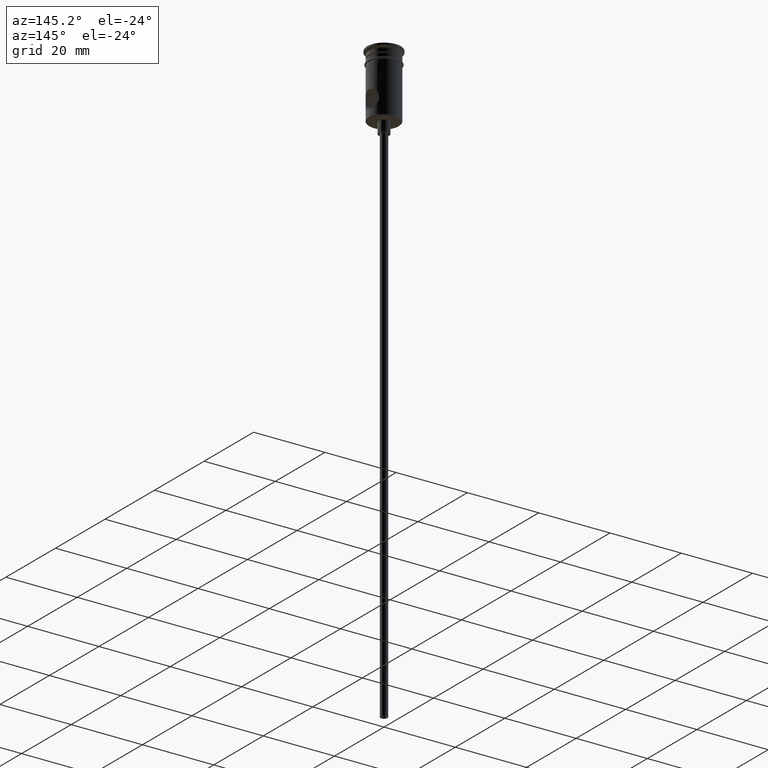
[diagram: clean part render]
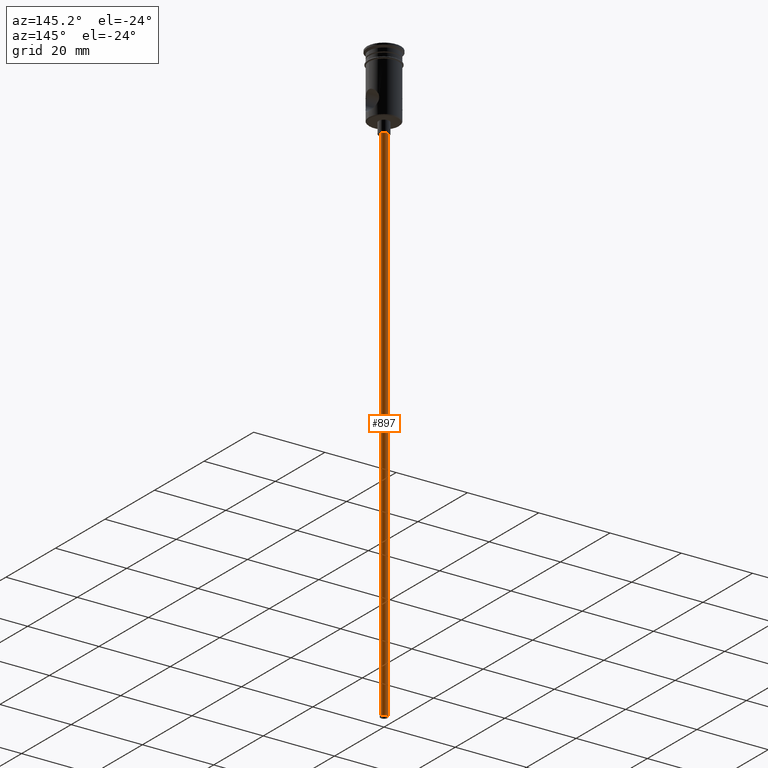
[diagram: same view with one face highlighted and labeled with its STEP entity id]
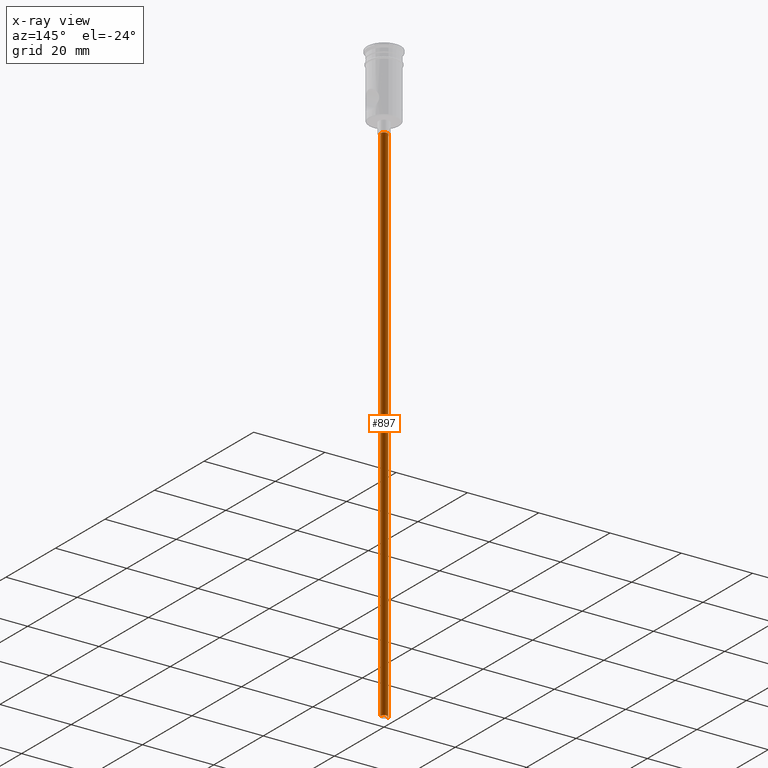
[diagram: x-ray of the same camera — body ghosted, the highlighted face saturated]
A machine part, auxiliary view. The second image highlights one B-rep face of the part: STEP entity #897.
The next image is the same camera in x-ray: the body ghosted, the highlighted face saturated — about 0% of this face is hidden behind the body in this view.
In plain terms, the highlighted cylindrical surface (edge-blend (fillet) strip) has radius 1 mm, axis along (-0, -0, 1).
Its self-contained STEP definition (entity closure, byte-faithful):
#17 = CARTESIAN_POINT ( 'NONE',  ( 0.9999999999999997780, 0.000000000000000000, -167.9999999999999716 ) ) ;
#21 = VERTEX_POINT ( 'NONE', #801 ) ;
#70 = DIRECTION ( 'NONE',  ( 1.000000000000000000, 0.000000000000000000, 0.000000000000000000 ) ) ;
#166 = ORIENTED_EDGE ( 'NONE', *, *, #759, .F. ) ;
#215 = CARTESIAN_POINT ( 'NONE',  ( -0.9999999999999997780, 1.224646799147352961E-16, -20.99999999999999645 ) ) ;
#272 = CARTESIAN_POINT ( 'NONE',  ( -0.9999999999999997780, 1.224646799147352961E-16, -167.9999999999999716 ) ) ;
#322 = EDGE_LOOP ( 'NONE', ( #166, #479, #374, #1351 ) ) ;
#374 = ORIENTED_EDGE ( 'NONE', *, *, #1289, .T. ) ;
#375 = VECTOR ( 'NONE', #668, 1000.000000000000000 ) ;
#440 = AXIS2_PLACEMENT_3D ( 'NONE', #1054, #1266, #70 ) ;
#479 = ORIENTED_EDGE ( 'NONE', *, *, #903, .T. ) ;
#572 = CIRCLE ( 'NONE', #587, 0.9999999999999997780 ) ;
#573 = VERTEX_POINT ( 'NONE', #1041 ) ;
#587 = AXIS2_PLACEMENT_3D ( 'NONE', #812, #1254, #655 ) ;
#630 = DIRECTION ( 'NONE',  ( -1.000000000000000000, 0.000000000000000000, 0.000000000000000000 ) ) ;
#652 = CIRCLE ( 'NONE', #1116, 0.9999999999999997780 ) ;
#655 = DIRECTION ( 'NONE',  ( -1.000000000000000000, 0.000000000000000000, 0.000000000000000000 ) ) ;
#660 = VECTOR ( 'NONE', #728, 1000.000000000000000 ) ;
#668 = DIRECTION ( 'NONE',  ( -0.000000000000000000, -0.000000000000000000, 1.000000000000000000 ) ) ;
#728 = DIRECTION ( 'NONE',  ( -0.000000000000000000, -0.000000000000000000, 1.000000000000000000 ) ) ;
#759 = EDGE_CURVE ( 'NONE', #21, #1179, #572, .T. ) ;
#801 = CARTESIAN_POINT ( 'NONE',  ( -0.9999999999999997780, 1.224646799147352961E-16, -167.9999999999999716 ) ) ;
#811 = FACE_OUTER_BOUND ( 'NONE', #322, .T. ) ;
#812 = CARTESIAN_POINT ( 'NONE',  ( 0.000000000000000000, 0.000000000000000000, -167.9999999999999716 ) ) ;
#897 = ADVANCED_FACE ( 'NONE', ( #811 ), #1277, .T. ) ;
#903 = EDGE_CURVE ( 'NONE', #21, #992, #1071, .T. ) ;
#988 = CARTESIAN_POINT ( 'NONE',  ( 0.9999999999999997780, 0.000000000000000000, -167.9999999999999716 ) ) ;
#992 = VERTEX_POINT ( 'NONE', #215 ) ;
#1017 = LINE ( 'NONE', #17, #375 ) ;
#1041 = CARTESIAN_POINT ( 'NONE',  ( 0.9999999999999997780, 0.000000000000000000, -20.99999999999999645 ) ) ;
#1054 = CARTESIAN_POINT ( 'NONE',  ( 0.000000000000000000, 0.000000000000000000, -167.9999999999999716 ) ) ;
#1063 = CARTESIAN_POINT ( 'NONE',  ( 0.000000000000000000, 0.000000000000000000, -20.99999999999999645 ) ) ;
#1071 = LINE ( 'NONE', #272, #660 ) ;
#1116 = AXIS2_PLACEMENT_3D ( 'NONE', #1063, #1189, #630 ) ;
#1179 = VERTEX_POINT ( 'NONE', #988 ) ;
#1189 = DIRECTION ( 'NONE',  ( 0.000000000000000000, 0.000000000000000000, -1.000000000000000000 ) ) ;
#1193 = EDGE_CURVE ( 'NONE', #1179, #573, #1017, .T. ) ;
#1254 = DIRECTION ( 'NONE',  ( 0.000000000000000000, 0.000000000000000000, -1.000000000000000000 ) ) ;
#1266 = DIRECTION ( 'NONE',  ( -0.000000000000000000, -0.000000000000000000, 1.000000000000000000 ) ) ;
#1277 = CYLINDRICAL_SURFACE ( 'NONE', #440, 0.9999999999999997780 ) ;
#1289 = EDGE_CURVE ( 'NONE', #992, #573, #652, .T. ) ;
#1351 = ORIENTED_EDGE ( 'NONE', *, *, #1193, .F. ) ;